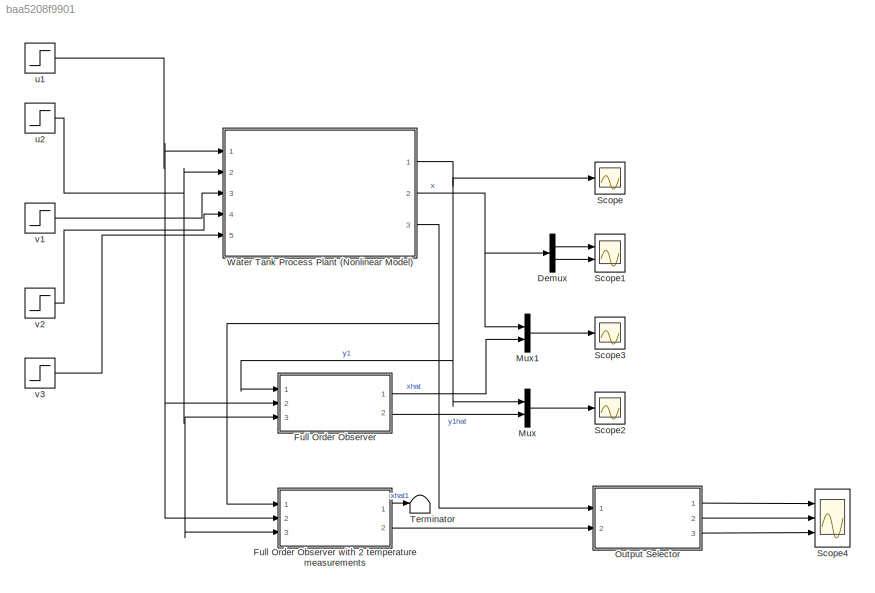
MODEL slx_baa5208f9901
KIND model
CONFIG AbsTol = auto
CONFIG EnableMultiTasking = on
CONFIG FixedStep = STEP_SIZE
CONFIG MaxStep = auto
CONFIG MinStep = auto
CONFIG RelTol = 1e-3
CONFIG SampleTimeConstraint = Unconstrained
CONFIG Solver = ode4
CONFIG SolverName = ode4
CONFIG StartTime = 0.0
CONFIG StopTime = SIM_TIME
BLOCK [Demux] Demux
  DisplayOption = bar
  Outputs = 2
  Ports = [1, 2]
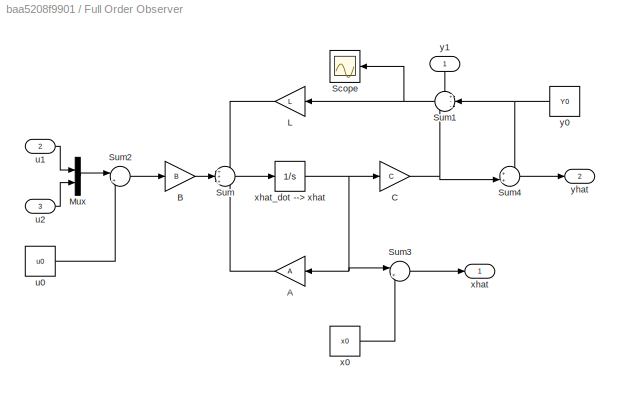
BLOCK [SubSystem] Full Order Observer
  Ports = [3, 2]
  RequestExecContextInheritance = off
  Variant = off
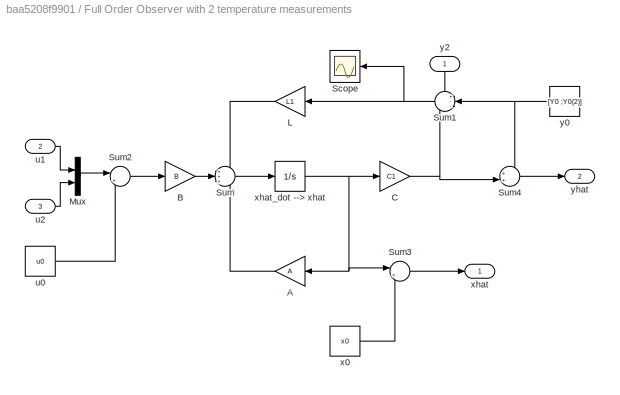
BLOCK [SubSystem] Full Order Observer with 2 temperature measurements
  Ports = [3, 2]
  RequestExecContextInheritance = off
  Variant = off
BLOCK [Gain] Full Order Observer with 2 temperature measurements/A
  Gain = A
  Multiplication = Matrix(K*u) (u vector)
  OutDataTypeStr = Inherit: Inherit via internal rule
  ParamDataTypeStr = Inherit: Inherit via internal rule
  SaturateOnIntegerOverflow = off
BLOCK [Gain] Full Order Observer with 2 temperature measurements/B
  Gain = B
  Multiplication = Matrix(K*u) (u vector)
  OutDataTypeStr = Inherit: Inherit via internal rule
  ParamDataTypeStr = Inherit: Inherit via internal rule
  SaturateOnIntegerOverflow = off
BLOCK [Gain] Full Order Observer with 2 temperature measurements/C
  Gain = C1
  Multiplication = Matrix(K*u) (u vector)
  OutDataTypeStr = Inherit: Inherit via internal rule
  ParamDataTypeStr = Inherit: Inherit via internal rule
  SaturateOnIntegerOverflow = off
BLOCK [Gain] Full Order Observer with 2 temperature measurements/L
  Gain = L1
  Multiplication = Matrix(K*u) (u vector)
  OutDataTypeStr = Inherit: Inherit via internal rule
  ParamDataTypeStr = Inherit: Inherit via internal rule
  SaturateOnIntegerOverflow = off
BLOCK [Mux] Full Order Observer with 2 temperature measurements/Mux
  DisplayOption = bar
  Inputs = 2
  Ports = [2, 1]
BLOCK [Scope] Full Order Observer with 2 temperature measurements/Scope
  NumInputPorts = 1
  Ports = [1]
  ScopeSpecificationString = Simulink.scopes.TimeScopeBlockCfg('CurrentConfiguration', extmgr.ConfigurationSet(extmgr.Configuration('Core','General UI',true),extmgr.Configuration('Core','Source UI',true),extmgr.Configuration('Sources','WiredSimulink',true,'DataLoggingVariableName','ScopeData4','DataLoggingSaveFormat','StructureWithTime','DataLoggingDecimation','1','DataLoggingDecimateData',true),extmgr.Configuration('Visuals'...<+1686ch>
BLOCK [Sum] Full Order Observer with 2 temperature measurements/Sum
  IconShape = round
  InputSameDT = off
  Inputs = +++
  OutDataTypeStr = Inherit: Inherit via internal rule
  Ports = [3, 1]
  SaturateOnIntegerOverflow = off
BLOCK [Sum] Full Order Observer with 2 temperature measurements/Sum1
  IconShape = round
  InputSameDT = off
  Inputs = +--
  OutDataTypeStr = Inherit: Inherit via internal rule
  Ports = [3, 1]
  SaturateOnIntegerOverflow = off
BLOCK [Sum] Full Order Observer with 2 temperature measurements/Sum2
  IconShape = round
  InputSameDT = off
  Inputs = |+-
  OutDataTypeStr = Inherit: Inherit via internal rule
  Ports = [2, 1]
  SaturateOnIntegerOverflow = off
BLOCK [Sum] Full Order Observer with 2 temperature measurements/Sum3
  IconShape = round
  InputSameDT = off
  Inputs = |++
  OutDataTypeStr = Inherit: Inherit via internal rule
  Ports = [2, 1]
  SaturateOnIntegerOverflow = off
BLOCK [Sum] Full Order Observer with 2 temperature measurements/Sum4
  IconShape = round
  InputSameDT = off
  Inputs = ++|
  OutDataTypeStr = Inherit: Inherit via internal rule
  Ports = [2, 1]
  SaturateOnIntegerOverflow = off
BLOCK [Constant] Full Order Observer with 2 temperature measurements/u0
  Value = u0
BLOCK [Inport] Full Order Observer with 2 temperature measurements/u1
  IconDisplay = Port number
  Port = 2
BLOCK [Inport] Full Order Observer with 2 temperature measurements/u2
  IconDisplay = Port number
  Port = 3
BLOCK [Constant] Full Order Observer with 2 temperature measurements/x0
  Value = x0
BLOCK [Outport] Full Order Observer with 2 temperature measurements/xhat
  IconDisplay = Port number
BLOCK [Integrator] Full Order Observer with 2 temperature measurements/xhat_dot --> xhat
  InitialCondition = xhat0
  Ports = [1, 1]
BLOCK [Constant] Full Order Observer with 2 temperature measurements/y0
  Value = [Y0 ;Y0(2)]
BLOCK [Inport] Full Order Observer with 2 temperature measurements/y2
  IconDisplay = Port number
BLOCK [Outport] Full Order Observer with 2 temperature measurements/yhat
  IconDisplay = Port number
  Port = 2
BLOCK [Gain] Full Order Observer/A
  Gain = A
  Multiplication = Matrix(K*u) (u vector)
  OutDataTypeStr = Inherit: Inherit via internal rule
  ParamDataTypeStr = Inherit: Inherit via internal rule
  SaturateOnIntegerOverflow = off
BLOCK [Gain] Full Order Observer/B
  Gain = B
  Multiplication = Matrix(K*u) (u vector)
  OutDataTypeStr = Inherit: Inherit via internal rule
  ParamDataTypeStr = Inherit: Inherit via internal rule
  SaturateOnIntegerOverflow = off
BLOCK [Gain] Full Order Observer/C
  Gain = C
  Multiplication = Matrix(K*u) (u vector)
  OutDataTypeStr = Inherit: Inherit via internal rule
  ParamDataTypeStr = Inherit: Inherit via internal rule
  SaturateOnIntegerOverflow = off
BLOCK [Gain] Full Order Observer/L
  Gain = L
  Multiplication = Matrix(K*u) (u vector)
  OutDataTypeStr = Inherit: Inherit via internal rule
  ParamDataTypeStr = Inherit: Inherit via internal rule
  SaturateOnIntegerOverflow = off
BLOCK [Mux] Full Order Observer/Mux
  DisplayOption = bar
  Inputs = 2
  Ports = [2, 1]
BLOCK [Scope] Full Order Observer/Scope
  NumInputPorts = 1
  Ports = [1]
  ScopeSpecificationString = C++SS(StrPVP('Location','[1, 48, 1601, 859]'),StrPVP('Open','off'),StrPVP('ZoomMode','yonly'),MxPVP('AxesTitles',53,'struct(''axes1'',''%<SignalLabel>'')'),MxPVP('ScopeGraphics',56,'struct(''FigureColor'',''[0.5 0.5 0.5]'',''AxesColor'',''[0 0 0]'',''AxesTickColor'',''[1 1 1]'',''LineColors'',''[1 1 0;1 0 1;0 1 1;1 0 0;0 1 0;0 0 1]'',''LineStyles'',''-|-|-|-|-|-'',''LineWidths'',''[0.5 0.5 0.5 0.5...<+297ch>
BLOCK [Sum] Full Order Observer/Sum
  IconShape = round
  InputSameDT = off
  Inputs = +++
  OutDataTypeStr = Inherit: Inherit via internal rule
  Ports = [3, 1]
  SaturateOnIntegerOverflow = off
BLOCK [Sum] Full Order Observer/Sum1
  IconShape = round
  InputSameDT = off
  Inputs = +--
  OutDataTypeStr = Inherit: Inherit via internal rule
  Ports = [3, 1]
  SaturateOnIntegerOverflow = off
BLOCK [Sum] Full Order Observer/Sum2
  IconShape = round
  InputSameDT = off
  Inputs = |+-
  OutDataTypeStr = Inherit: Inherit via internal rule
  Ports = [2, 1]
  SaturateOnIntegerOverflow = off
BLOCK [Sum] Full Order Observer/Sum3
  IconShape = round
  InputSameDT = off
  Inputs = |++
  OutDataTypeStr = Inherit: Inherit via internal rule
  Ports = [2, 1]
  SaturateOnIntegerOverflow = off
BLOCK [Sum] Full Order Observer/Sum4
  IconShape = round
  InputSameDT = off
  Inputs = ++|
  OutDataTypeStr = Inherit: Inherit via internal rule
  Ports = [2, 1]
  SaturateOnIntegerOverflow = off
BLOCK [Constant] Full Order Observer/u0
  Value = u0
BLOCK [Inport] Full Order Observer/u1
  IconDisplay = Port number
  Port = 2
BLOCK [Inport] Full Order Observer/u2
  IconDisplay = Port number
  Port = 3
BLOCK [Constant] Full Order Observer/x0
  Value = x0
BLOCK [Outport] Full Order Observer/xhat
  IconDisplay = Port number
BLOCK [Integrator] Full Order Observer/xhat_dot --> xhat
  InitialCondition = xhat0
  Ports = [1, 1]
BLOCK [Constant] Full Order Observer/y0
  Value = Y0
BLOCK [Inport] Full Order Observer/y1
  IconDisplay = Port number
BLOCK [Outport] Full Order Observer/yhat
  IconDisplay = Port number
  Port = 2
BLOCK [Mux] Mux
  DisplayOption = bar
  Inputs = 2
  Ports = [2, 1]
BLOCK [Mux] Mux1
  DisplayOption = bar
  Inputs = 2
  Ports = [2, 1]
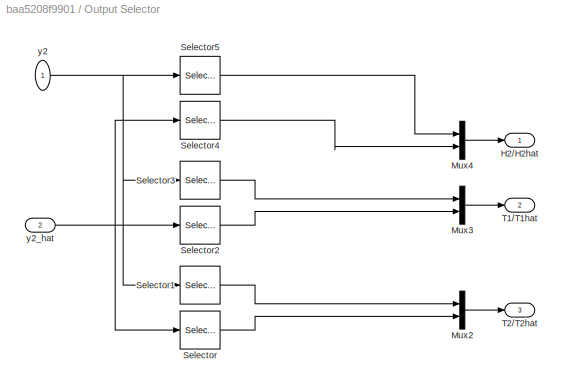
BLOCK [SubSystem] Output Selector
  Ports = [2, 3]
  RequestExecContextInheritance = off
  Variant = off
BLOCK [Outport] Output Selector/H2//H2hat
  IconDisplay = Port number
BLOCK [Mux] Output Selector/Mux2
  DisplayOption = bar
  Inputs = 2
  Ports = [2, 1]
BLOCK [Mux] Output Selector/Mux3
  DisplayOption = bar
  Inputs = 2
  Ports = [2, 1]
BLOCK [Mux] Output Selector/Mux4
  DisplayOption = bar
  Inputs = 2
  Ports = [2, 1]
BLOCK [Selector] Output Selector/Selector
  IndexOptions = Index vector (dialog)
  Indices = [3]
  InputPortWidth = 3
  OutputSizes = 1
  Ports = [1, 1]
BLOCK [Selector] Output Selector/Selector1
  IndexOptions = Index vector (dialog)
  Indices = [3]
  InputPortWidth = 3
  OutputSizes = 1
  Ports = [1, 1]
BLOCK [Selector] Output Selector/Selector2
  IndexOptions = Index vector (dialog)
  Indices = [2]
  InputPortWidth = 3
  OutputSizes = 1
  Ports = [1, 1]
BLOCK [Selector] Output Selector/Selector3
  IndexOptions = Index vector (dialog)
  Indices = [2]
  InputPortWidth = 3
  OutputSizes = 1
  Ports = [1, 1]
BLOCK [Selector] Output Selector/Selector4
  IndexOptions = Index vector (dialog)
  Indices = [1]
  InputPortWidth = 3
  OutputSizes = 1
  Ports = [1, 1]
BLOCK [Selector] Output Selector/Selector5
  IndexOptions = Index vector (dialog)
  Indices = [1]
  InputPortWidth = 3
  OutputSizes = 1
  Ports = [1, 1]
BLOCK [Outport] Output Selector/T1//T1hat
  IconDisplay = Port number
  Port = 2
BLOCK [Outport] Output Selector/T2//T2hat
  IconDisplay = Port number
  Port = 3
BLOCK [Inport] Output Selector/y2
  IconDisplay = Port number
BLOCK [Inport] Output Selector/y2_hat
  IconDisplay = Port number
  Port = 2
BLOCK [Scope] Scope
  NumInputPorts = 1
  Ports = [1]
  ScopeSpecificationString = C++SS(StrPVP('Location','[1, 48, 1921, 1159]'),StrPVP('Open','off'),MxPVP('AxesTitles',53,'struct(''axes1'',''%<SignalLabel>'')'),MxPVP('ScopeGraphics',56,'struct(''FigureColor'',''[0.5 0.5 0.5]'',''AxesColor'',''[0 0 0]'',''AxesTickColor'',''[1 1 1]'',''LineColors'',''[1 1 0;1 0 1;0 1 1;1 0 0;0 1 0;0 0 1]'',''LineStyles'',''-|-|-|-|-|-'',''LineWidths'',''[0.5 0.5 0.5 0.5 0.5 0.5]'',''MarkerStyles...<+239ch>
BLOCK [Scope] Scope1
  NumInputPorts = 2
  Ports = [2]
  ScopeSpecificationString = Simulink.scopes.TimeScopeBlockCfg('CurrentConfiguration', extmgr.ConfigurationSet(extmgr.Configuration('Core','General UI',true),extmgr.Configuration('Core','Source UI',true),extmgr.Configuration('Sources','WiredSimulink',true,'DataLoggingVariableName','ScopeData1','DataLoggingSaveFormat','StructureWithTime','DataLoggingDecimation','1','DataLoggingDecimateData',true),extmgr.Configuration('Visuals'...<+2351ch>
BLOCK [Scope] Scope2
  NumInputPorts = 1
  Ports = [1]
  ScopeSpecificationString = Simulink.scopes.TimeScopeBlockCfg('CurrentConfiguration', extmgr.ConfigurationSet(extmgr.Configuration('Core','General UI',true,'FigureColor',[0.501960784313725 0.501960784313725 0.501960784313725]),extmgr.Configuration('Core','Source UI',true),extmgr.Configuration('Sources','WiredSimulink',true,'DataLoggingVariableName','ScopeData2','DataLoggingSaveFormat','StructureWithTime','DataLoggingDecimati...<+2688ch>
BLOCK [Scope] Scope3
  NumInputPorts = 1
  Ports = [1]
  ScopeSpecificationString = Simulink.scopes.TimeScopeBlockCfg('CurrentConfiguration', extmgr.ConfigurationSet(extmgr.Configuration('Core','General UI',true),extmgr.Configuration('Core','Source UI',true),extmgr.Configuration('Sources','WiredSimulink',true,'DataLoggingVariableName','ScopeData3','DataLoggingSaveFormat','StructureWithTime','DataLoggingDecimation','1','DataLoggingDecimateData',true),extmgr.Configuration('Visuals'...<+1725ch>
BLOCK [Scope] Scope4
  NumInputPorts = 3
  Ports = [3]
  ScopeSpecificationString = Simulink.scopes.TimeScopeBlockCfg('CurrentConfiguration', extmgr.ConfigurationSet(extmgr.Configuration('Core','General UI',true,'FigureColor',[0.501960784313725 0.501960784313725 0.501960784313725]),extmgr.Configuration('Core','Source UI',true),extmgr.Configuration('Sources','WiredSimulink',true,'DataLoggingVariableName','ScopeData5','DataLoggingSaveFormat','StructureWithTime','DataLoggingDecimati...<+5092ch>
BLOCK [Terminator] Terminator
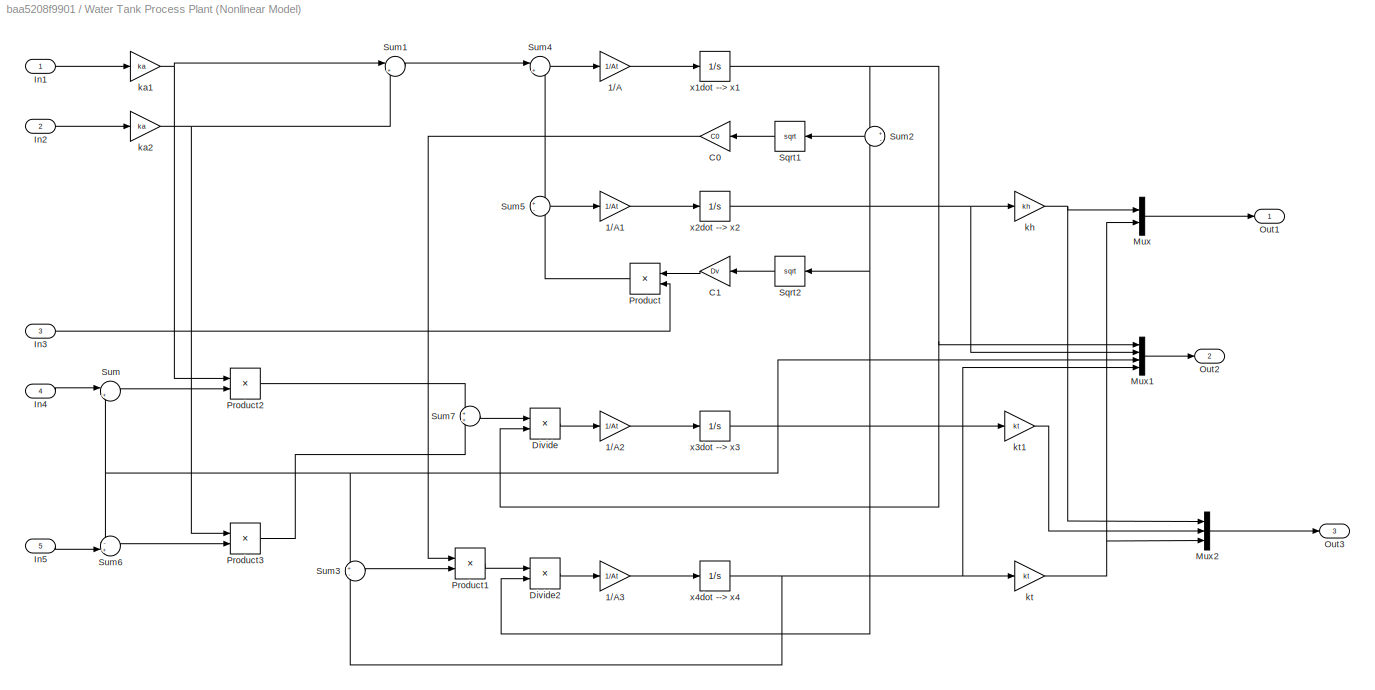
BLOCK [SubSystem] Water Tank Process Plant (Nonlinear Model)
  Ports = [5, 3]
  RequestExecContextInheritance = off
  Variant = off
BLOCK [Gain] Water Tank Process Plant (Nonlinear Model)/1//A
  Gain = 1/At
  OutDataTypeStr = Inherit: Inherit via internal rule
  ParamDataTypeStr = Inherit: Inherit via internal rule
  SaturateOnIntegerOverflow = off
BLOCK [Gain] Water Tank Process Plant (Nonlinear Model)/1//A1
  Gain = 1/At
  OutDataTypeStr = Inherit: Inherit via internal rule
  ParamDataTypeStr = Inherit: Inherit via internal rule
  SaturateOnIntegerOverflow = off
BLOCK [Gain] Water Tank Process Plant (Nonlinear Model)/1//A2
  Gain = 1/At
  OutDataTypeStr = Inherit: Inherit via internal rule
  ParamDataTypeStr = Inherit: Inherit via internal rule
  SaturateOnIntegerOverflow = off
BLOCK [Gain] Water Tank Process Plant (Nonlinear Model)/1//A3
  Gain = 1/At
  OutDataTypeStr = Inherit: Inherit via internal rule
  ParamDataTypeStr = Inherit: Inherit via internal rule
  SaturateOnIntegerOverflow = off
BLOCK [Gain] Water Tank Process Plant (Nonlinear Model)/C0
  Gain = C0
  OutDataTypeStr = Inherit: Inherit via internal rule
  ParamDataTypeStr = Inherit: Inherit via internal rule
  SaturateOnIntegerOverflow = off
BLOCK [Gain] Water Tank Process Plant (Nonlinear Model)/C1
  Gain = Dv
  OutDataTypeStr = Inherit: Inherit via internal rule
  ParamDataTypeStr = Inherit: Inherit via internal rule
  SaturateOnIntegerOverflow = off
BLOCK [Product] Water Tank Process Plant (Nonlinear Model)/Divide
  InputSameDT = off
  Inputs = */
  OutDataTypeStr = Inherit: Inherit via internal rule
  Ports = [2, 1]
  RndMeth = Floor
  SaturateOnIntegerOverflow = off
BLOCK [Product] Water Tank Process Plant (Nonlinear Model)/Divide2
  InputSameDT = off
  Inputs = */
  OutDataTypeStr = Inherit: Inherit via internal rule
  Ports = [2, 1]
  RndMeth = Floor
  SaturateOnIntegerOverflow = off
BLOCK [Inport] Water Tank Process Plant (Nonlinear Model)/In1
  IconDisplay = Port number
BLOCK [Inport] Water Tank Process Plant (Nonlinear Model)/In2
  IconDisplay = Port number
  Port = 2
BLOCK [Inport] Water Tank Process Plant (Nonlinear Model)/In3
  IconDisplay = Port number
  Port = 3
BLOCK [Inport] Water Tank Process Plant (Nonlinear Model)/In4
  IconDisplay = Port number
  Port = 4
BLOCK [Inport] Water Tank Process Plant (Nonlinear Model)/In5
  IconDisplay = Port number
  Port = 5
BLOCK [Mux] Water Tank Process Plant (Nonlinear Model)/Mux
  DisplayOption = bar
  Inputs = 2
  Ports = [2, 1]
BLOCK [Mux] Water Tank Process Plant (Nonlinear Model)/Mux1
  DisplayOption = bar
  Ports = [4, 1]
BLOCK [Mux] Water Tank Process Plant (Nonlinear Model)/Mux2
  DisplayOption = bar
  Inputs = 3
  Ports = [3, 1]
BLOCK [Outport] Water Tank Process Plant (Nonlinear Model)/Out1
  IconDisplay = Port number
BLOCK [Outport] Water Tank Process Plant (Nonlinear Model)/Out2
  IconDisplay = Port number
  Port = 2
BLOCK [Outport] Water Tank Process Plant (Nonlinear Model)/Out3
  IconDisplay = Port number
  Port = 3
BLOCK [Product] Water Tank Process Plant (Nonlinear Model)/Product
  InputSameDT = off
  OutDataTypeStr = Inherit: Inherit via internal rule
  Ports = [2, 1]
  RndMeth = Floor
  SaturateOnIntegerOverflow = off
BLOCK [Product] Water Tank Process Plant (Nonlinear Model)/Product1
  InputSameDT = off
  OutDataTypeStr = Inherit: Inherit via internal rule
  Ports = [2, 1]
  RndMeth = Floor
  SaturateOnIntegerOverflow = off
BLOCK [Product] Water Tank Process Plant (Nonlinear Model)/Product2
  InputSameDT = off
  OutDataTypeStr = Inherit: Inherit via internal rule
  Ports = [2, 1]
  RndMeth = Floor
  SaturateOnIntegerOverflow = off
BLOCK [Product] Water Tank Process Plant (Nonlinear Model)/Product3
  InputSameDT = off
  OutDataTypeStr = Inherit: Inherit via internal rule
  Ports = [2, 1]
  RndMeth = Floor
  SaturateOnIntegerOverflow = off
BLOCK [Sqrt] Water Tank Process Plant (Nonlinear Model)/Sqrt1
BLOCK [Sqrt] Water Tank Process Plant (Nonlinear Model)/Sqrt2
BLOCK [Sum] Water Tank Process Plant (Nonlinear Model)/Sum
  IconShape = round
  InputSameDT = off
  Inputs = |+-
  OutDataTypeStr = Inherit: Inherit via internal rule
  Ports = [2, 1]
  SaturateOnIntegerOverflow = off
BLOCK [Sum] Water Tank Process Plant (Nonlinear Model)/Sum1
  IconShape = round
  InputSameDT = off
  Inputs = |++
  OutDataTypeStr = Inherit: Inherit via internal rule
  Ports = [2, 1]
  SaturateOnIntegerOverflow = off
BLOCK [Sum] Water Tank Process Plant (Nonlinear Model)/Sum2
  IconShape = round
  InputSameDT = off
  Inputs = +-
  OutDataTypeStr = Inherit: Inherit via internal rule
  Ports = [2, 1]
  SaturateOnIntegerOverflow = off
BLOCK [Sum] Water Tank Process Plant (Nonlinear Model)/Sum3
  IconShape = round
  InputSameDT = off
  Inputs = +-
  OutDataTypeStr = Inherit: Inherit via internal rule
  Ports = [2, 1]
  SaturateOnIntegerOverflow = off
BLOCK [Sum] Water Tank Process Plant (Nonlinear Model)/Sum4
  IconShape = round
  InputSameDT = off
  Inputs = |+-
  OutDataTypeStr = Inherit: Inherit via internal rule
  Ports = [2, 1]
  SaturateOnIntegerOverflow = off
BLOCK [Sum] Water Tank Process Plant (Nonlinear Model)/Sum5
  IconShape = round
  InputSameDT = off
  Inputs = +-
  OutDataTypeStr = Inherit: Inherit via internal rule
  Ports = [2, 1]
  SaturateOnIntegerOverflow = off
BLOCK [Sum] Water Tank Process Plant (Nonlinear Model)/Sum6
  IconShape = round
  InputSameDT = off
  Inputs = -+|
  OutDataTypeStr = Inherit: Inherit via internal rule
  Ports = [2, 1]
  SaturateOnIntegerOverflow = off
BLOCK [Sum] Water Tank Process Plant (Nonlinear Model)/Sum7
  IconShape = round
  InputSameDT = off
  OutDataTypeStr = Inherit: Inherit via internal rule
  Ports = [2, 1]
  SaturateOnIntegerOverflow = off
BLOCK [Gain] Water Tank Process Plant (Nonlinear Model)/ka1
  Gain = ka
  OutDataTypeStr = Inherit: Inherit via internal rule
  ParamDataTypeStr = Inherit: Inherit via internal rule
  SaturateOnIntegerOverflow = off
BLOCK [Gain] Water Tank Process Plant (Nonlinear Model)/ka2
  Gain = ka
  OutDataTypeStr = Inherit: Inherit via internal rule
  ParamDataTypeStr = Inherit: Inherit via internal rule
  SaturateOnIntegerOverflow = off
BLOCK [Gain] Water Tank Process Plant (Nonlinear Model)/kh
  Gain = kh
  OutDataTypeStr = Inherit: Inherit via internal rule
  ParamDataTypeStr = Inherit: Inherit via internal rule
  SaturateOnIntegerOverflow = off
BLOCK [Gain] Water Tank Process Plant (Nonlinear Model)/kt
  Gain = kt
  OutDataTypeStr = Inherit: Inherit via internal rule
  ParamDataTypeStr = Inherit: Inherit via internal rule
  SaturateOnIntegerOverflow = off
BLOCK [Gain] Water Tank Process Plant (Nonlinear Model)/kt1
  Gain = kt
  OutDataTypeStr = Inherit: Inherit via internal rule
  ParamDataTypeStr = Inherit: Inherit via internal rule
  SaturateOnIntegerOverflow = off
BLOCK [Integrator] Water Tank Process Plant (Nonlinear Model)/x1dot --> x1
  InitialCondition = x0(1)
  LimitOutput = on
  LowerSaturationLimit = 0
  Ports = [1, 1]
BLOCK [Integrator] Water Tank Process Plant (Nonlinear Model)/x2dot --> x2
  InitialCondition = x0(2)
  LimitOutput = on
  LowerSaturationLimit = 0
  Ports = [1, 1]
BLOCK [Integrator] Water Tank Process Plant (Nonlinear Model)/x3dot --> x3
  InitialCondition = x0(3)
  Ports = [1, 1]
BLOCK [Integrator] Water Tank Process Plant (Nonlinear Model)/x4dot --> x4
  InitialCondition = x0(4)
  Ports = [1, 1]
BLOCK [Step] u1
  After = uw1
  Before = uw0
  SampleTime = 0
  Time = Tw
BLOCK [Step] u2
  After = uc1
  Before = uc0
  SampleTime = 0
  Time = Tc
BLOCK [Step] v1
  After = Av1
  Before = Av0
  SampleTime = 0
  Time = Tv
BLOCK [Step] v2
  After = Tw1
  Before = Tw0
  SampleTime = 0
  Time = T1
BLOCK [Step] v3
  After = Tc1
  Before = Tc0
  SampleTime = 0
  Time = T2
LINE Demux:1 -> Scope1:1
LINE Demux:2 -> Scope1:2
LINE Full Order Observer with 2 temperature measurements/A:1 -> Full Order Observer with 2 temperature measurements/Sum:3
LINE Full Order Observer with 2 temperature measurements/B:1 -> Full Order Observer with 2 temperature measurements/Sum:2
NET Full Order Observer with 2 temperature measurements/C:1 -> Full Order Observer with 2 temperature measurements/Sum1:3, Full Order Observer with 2 temperature measurements/Sum4:2
LINE Full Order Observer with 2 temperature measurements/L:1 -> Full Order Observer with 2 temperature measurements/Sum:1
LINE Full Order Observer with 2 temperature measurements/Mux:1 -> Full Order Observer with 2 temperature measurements/Sum2:1
NET Full Order Observer with 2 temperature measurements/Sum1:1 -> Full Order Observer with 2 temperature measurements/L:1, Full Order Observer with 2 temperature measurements/Scope:1
LINE Full Order Observer with 2 temperature measurements/Sum2:1 -> Full Order Observer with 2 temperature measurements/B:1
LINE Full Order Observer with 2 temperature measurements/Sum3:1 -> Full Order Observer with 2 temperature measurements/xhat:1
LINE Full Order Observer with 2 temperature measurements/Sum4:1 -> Full Order Observer with 2 temperature measurements/yhat:1
LINE Full Order Observer with 2 temperature measurements/Sum:1 -> Full Order Observer with 2 temperature measurements/xhat_dot --> xhat:1
LINE Full Order Observer with 2 temperature measurements/u0:1 -> Full Order Observer with 2 temperature measurements/Sum2:2
LINE Full Order Observer with 2 temperature measurements/u1:1 -> Full Order Observer with 2 temperature measurements/Mux:1
LINE Full Order Observer with 2 temperature measurements/u2:1 -> Full Order Observer with 2 temperature measurements/Mux:2
LINE Full Order Observer with 2 temperature measurements/x0:1 -> Full Order Observer with 2 temperature measurements/Sum3:2
NET Full Order Observer with 2 temperature measurements/xhat_dot --> xhat:1 -> Full Order Observer with 2 temperature measurements/A:1, Full Order Observer with 2 temperature measurements/C:1, Full Order Observer with 2 temperature measurements/Sum3:1
NET Full Order Observer with 2 temperature measurements/y0:1 -> Full Order Observer with 2 temperature measurements/Sum1:2, Full Order Observer with 2 temperature measurements/Sum4:1
LINE Full Order Observer with 2 temperature measurements/y2:1 -> Full Order Observer with 2 temperature measurements/Sum1:1
LINE Full Order Observer with 2 temperature measurements:1 -> Terminator:1
LINE Full Order Observer with 2 temperature measurements:2 -> Output Selector:2
LINE Full Order Observer/A:1 -> Full Order Observer/Sum:3
LINE Full Order Observer/B:1 -> Full Order Observer/Sum:2
NET Full Order Observer/C:1 -> Full Order Observer/Sum1:3, Full Order Observer/Sum4:2
LINE Full Order Observer/L:1 -> Full Order Observer/Sum:1
LINE Full Order Observer/Mux:1 -> Full Order Observer/Sum2:1
NET Full Order Observer/Sum1:1 -> Full Order Observer/L:1, Full Order Observer/Scope:1
LINE Full Order Observer/Sum2:1 -> Full Order Observer/B:1
LINE Full Order Observer/Sum3:1 -> Full Order Observer/xhat:1
LINE Full Order Observer/Sum4:1 -> Full Order Observer/yhat:1
LINE Full Order Observer/Sum:1 -> Full Order Observer/xhat_dot --> xhat:1
LINE Full Order Observer/u0:1 -> Full Order Observer/Sum2:2
LINE Full Order Observer/u1:1 -> Full Order Observer/Mux:1
LINE Full Order Observer/u2:1 -> Full Order Observer/Mux:2
LINE Full Order Observer/x0:1 -> Full Order Observer/Sum3:2
NET Full Order Observer/xhat_dot --> xhat:1 -> Full Order Observer/A:1, Full Order Observer/C:1, Full Order Observer/Sum3:1
NET Full Order Observer/y0:1 -> Full Order Observer/Sum1:2, Full Order Observer/Sum4:1
LINE Full Order Observer/y1:1 -> Full Order Observer/Sum1:1
LINE Full Order Observer:1 -> Mux1:2
LINE Full Order Observer:2 -> Mux:2
LINE Mux1:1 -> Scope3:1
LINE Mux:1 -> Scope2:1
LINE Output Selector/Mux2:1 -> Output Selector/T2//T2hat:1
LINE Output Selector/Mux3:1 -> Output Selector/T1//T1hat:1
LINE Output Selector/Mux4:1 -> Output Selector/H2//H2hat:1
LINE Output Selector/Selector1:1 -> Output Selector/Mux2:1
LINE Output Selector/Selector2:1 -> Output Selector/Mux3:2
LINE Output Selector/Selector3:1 -> Output Selector/Mux3:1
LINE Output Selector/Selector4:1 -> Output Selector/Mux4:2
LINE Output Selector/Selector5:1 -> Output Selector/Mux4:1
LINE Output Selector/Selector:1 -> Output Selector/Mux2:2
NET Output Selector/y2:1 -> Output Selector/Selector1:1, Output Selector/Selector3:1, Output Selector/Selector5:1
NET Output Selector/y2_hat:1 -> Output Selector/Selector2:1, Output Selector/Selector4:1, Output Selector/Selector:1
LINE Output Selector:1 -> Scope4:1
LINE Output Selector:2 -> Scope4:2
LINE Output Selector:3 -> Scope4:3
LINE Water Tank Process Plant (Nonlinear Model)/1//A1:1 -> Water Tank Process Plant (Nonlinear Model)/x2dot --> x2:1
LINE Water Tank Process Plant (Nonlinear Model)/1//A2:1 -> Water Tank Process Plant (Nonlinear Model)/x3dot --> x3:1
LINE Water Tank Process Plant (Nonlinear Model)/1//A3:1 -> Water Tank Process Plant (Nonlinear Model)/x4dot --> x4:1
LINE Water Tank Process Plant (Nonlinear Model)/1//A:1 -> Water Tank Process Plant (Nonlinear Model)/x1dot --> x1:1
NET Water Tank Process Plant (Nonlinear Model)/C0:1 -> Water Tank Process Plant (Nonlinear Model)/Product1:1, Water Tank Process Plant (Nonlinear Model)/Sum4:2, Water Tank Process Plant (Nonlinear Model)/Sum5:1
LINE Water Tank Process Plant (Nonlinear Model)/C1:1 -> Water Tank Process Plant (Nonlinear Model)/Product:1
LINE Water Tank Process Plant (Nonlinear Model)/Divide2:1 -> Water Tank Process Plant (Nonlinear Model)/1//A3:1
LINE Water Tank Process Plant (Nonlinear Model)/Divide:1 -> Water Tank Process Plant (Nonlinear Model)/1//A2:1
LINE Water Tank Process Plant (Nonlinear Model)/In1:1 -> Water Tank Process Plant (Nonlinear Model)/ka1:1
LINE Water Tank Process Plant (Nonlinear Model)/In2:1 -> Water Tank Process Plant (Nonlinear Model)/ka2:1
LINE Water Tank Process Plant (Nonlinear Model)/In3:1 -> Water Tank Process Plant (Nonlinear Model)/Product:2
LINE Water Tank Process Plant (Nonlinear Model)/In4:1 -> Water Tank Process Plant (Nonlinear Model)/Sum:1
LINE Water Tank Process Plant (Nonlinear Model)/In5:1 -> Water Tank Process Plant (Nonlinear Model)/Sum6:2
LINE Water Tank Process Plant (Nonlinear Model)/Mux1:1 -> Water Tank Process Plant (Nonlinear Model)/Out2:1
LINE Water Tank Process Plant (Nonlinear Model)/Mux2:1 -> Water Tank Process Plant (Nonlinear Model)/Out3:1
LINE Water Tank Process Plant (Nonlinear Model)/Mux:1 -> Water Tank Process Plant (Nonlinear Model)/Out1:1
LINE Water Tank Process Plant (Nonlinear Model)/Product1:1 -> Water Tank Process Plant (Nonlinear Model)/Divide2:1
LINE Water Tank Process Plant (Nonlinear Model)/Product2:1 -> Water Tank Process Plant (Nonlinear Model)/Sum7:1
LINE Water Tank Process Plant (Nonlinear Model)/Product3:1 -> Water Tank Process Plant (Nonlinear Model)/Sum7:2
LINE Water Tank Process Plant (Nonlinear Model)/Product:1 -> Water Tank Process Plant (Nonlinear Model)/Sum5:2
LINE Water Tank Process Plant (Nonlinear Model)/Sqrt1:1 -> Water Tank Process Plant (Nonlinear Model)/C0:1
LINE Water Tank Process Plant (Nonlinear Model)/Sqrt2:1 -> Water Tank Process Plant (Nonlinear Model)/C1:1
LINE Water Tank Process Plant (Nonlinear Model)/Sum1:1 -> Water Tank Process Plant (Nonlinear Model)/Sum4:1
LINE Water Tank Process Plant (Nonlinear Model)/Sum2:1 -> Water Tank Process Plant (Nonlinear Model)/Sqrt1:1
LINE Water Tank Process Plant (Nonlinear Model)/Sum3:1 -> Water Tank Process Plant (Nonlinear Model)/Product1:2
LINE Water Tank Process Plant (Nonlinear Model)/Sum4:1 -> Water Tank Process Plant (Nonlinear Model)/1//A:1
LINE Water Tank Process Plant (Nonlinear Model)/Sum5:1 -> Water Tank Process Plant (Nonlinear Model)/1//A1:1
LINE Water Tank Process Plant (Nonlinear Model)/Sum6:1 -> Water Tank Process Plant (Nonlinear Model)/Product3:2
LINE Water Tank Process Plant (Nonlinear Model)/Sum7:1 -> Water Tank Process Plant (Nonlinear Model)/Divide:1
LINE Water Tank Process Plant (Nonlinear Model)/Sum:1 -> Water Tank Process Plant (Nonlinear Model)/Product2:2
NET Water Tank Process Plant (Nonlinear Model)/ka1:1 -> Water Tank Process Plant (Nonlinear Model)/Product2:1, Water Tank Process Plant (Nonlinear Model)/Sum1:1
NET Water Tank Process Plant (Nonlinear Model)/ka2:1 -> Water Tank Process Plant (Nonlinear Model)/Product3:1, Water Tank Process Plant (Nonlinear Model)/Sum1:2
NET Water Tank Process Plant (Nonlinear Model)/kh:1 -> Water Tank Process Plant (Nonlinear Model)/Mux2:1, Water Tank Process Plant (Nonlinear Model)/Mux:1
LINE Water Tank Process Plant (Nonlinear Model)/kt1:1 -> Water Tank Process Plant (Nonlinear Model)/Mux2:2
NET Water Tank Process Plant (Nonlinear Model)/kt:1 -> Water Tank Process Plant (Nonlinear Model)/Mux2:3, Water Tank Process Plant (Nonlinear Model)/Mux:2
NET Water Tank Process Plant (Nonlinear Model)/x1dot --> x1:1 -> Water Tank Process Plant (Nonlinear Model)/Divide:2, Water Tank Process Plant (Nonlinear Model)/Mux1:1, Water Tank Process Plant (Nonlinear Model)/Sum2:1
NET Water Tank Process Plant (Nonlinear Model)/x2dot --> x2:1 -> Water Tank Process Plant (Nonlinear Model)/Divide2:2, Water Tank Process Plant (Nonlinear Model)/Mux1:2, Water Tank Process Plant (Nonlinear Model)/Sqrt2:1, Water Tank Process Plant (Nonlinear Model)/Sum2:2, Water Tank Process Plant (Nonlinear Model)/kh:1
NET Water Tank Process Plant (Nonlinear Model)/x3dot --> x3:1 -> Water Tank Process Plant (Nonlinear Model)/Mux1:3, Water Tank Process Plant (Nonlinear Model)/Sum3:1, Water Tank Process Plant (Nonlinear Model)/Sum6:1, Water Tank Process Plant (Nonlinear Model)/Sum:2, Water Tank Process Plant (Nonlinear Model)/kt1:1
NET Water Tank Process Plant (Nonlinear Model)/x4dot --> x4:1 -> Water Tank Process Plant (Nonlinear Model)/Mux1:4, Water Tank Process Plant (Nonlinear Model)/Sum3:2, Water Tank Process Plant (Nonlinear Model)/kt:1
NET Water Tank Process Plant (Nonlinear Model):1 -> Full Order Observer:1, Mux:1, Scope:1
NET Water Tank Process Plant (Nonlinear Model):2 -> Demux:1, Mux1:1
NET Water Tank Process Plant (Nonlinear Model):3 -> Full Order Observer with 2 temperature measurements:1, Output Selector:1
NET u1:1 -> Full Order Observer with 2 temperature measurements:2, Full Order Observer:2, Water Tank Process Plant (Nonlinear Model):1
NET u2:1 -> Full Order Observer with 2 temperature measurements:3, Full Order Observer:3, Water Tank Process Plant (Nonlinear Model):2
LINE v1:1 -> Water Tank Process Plant (Nonlinear Model):3
LINE v2:1 -> Water Tank Process Plant (Nonlinear Model):4
LINE v3:1 -> Water Tank Process Plant (Nonlinear Model):5
note: NET lines group one-source signal fan-out (src -> all destinations, sorted); 1:1 wires keep LINE
